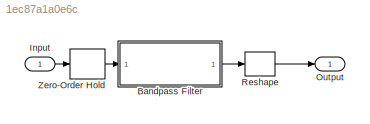
MODEL slx_1ec87a1a0e6c
KIND model
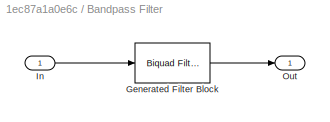
BLOCK [SubSystem] Bandpass Filter
  CopyFcn = fdesignblkfcn(gcbh, {'CopyFcn'});
  DialogController = fdesignblkfcn
  InitFcn = fdesignblkfcn(gcbh, {'InitFcn'});
  Ports = [1, 1]
  RequestExecContextInheritance = off
  UserDataPersistent = on
BLOCK [Reference] Bandpass Filter/Generated Filter Block  REF=dsparch4/Biquad Filter
  BiQuadCoeffs = [0.01013958648634297 0 -0.01013958648634297 1 -1.6618133812024951 0.98627046054740486;0.0025493781187891492 0 -0.0025493781187891492 1 -1.6514591991218408 0.98607730419032968;0.016304485317952876 0 -0.016304485317952876 1 -1.6744504392878072 0.99677925049276372;0.010019474414157988 0 -0.010019474414157988 1 -1.6562936076737262 0.99669840495107032;0.011567698875754661 0 -0.011567698875754661 1 -1.6...<+297ch>
  CoeffSource = Specify via dialog
  FilterSource = Specify via dialog
  IC = 0
  ICden = 0
  ICnum = 0
  IIRFiltStruct = Direct form II
  InputProcessing = Columns as channels (frame based)
  LockScale = off
  Ports = [1, 1]
  ScaleValueMode = Specify via input port (g)
  ScaleValues = [0.0075209697231768506;1;1;1;1;1;1;1;1]
  SourceBlock = dsparch4/Biquad Filter
  SourceType = Biquad Filter
  Tag = BlockMethodSubSystem
  UserDataPersistent = on
  a0Flag = Warning
  accumFracLength = 30
  accumMode = Same as product output
  accumWordLength = 32
  allowOverrides = on
  denAccumFracLength = 30
  denProdOutputFracLength = 30
  dfiltObjectName = dfilt.df2tsos([1 0.3 0.4],[1 0.1 0.2])
  firstCoeffFracLength = 15
  firstCoeffMode = Same word length as input
  firstCoeffWordLength = 16
  memoryFracLength = 15
  memoryMode = Same as accumulator
  memoryWordLength = 16
  multiplicandFracLength = 30
  multiplicandMode = Same as output
  multiplicandWordLength = 32
  optimizeScaleValues = off
  outputFracLength = 15
  outputMode = Same as accumulator
  outputWordLength = 16
  overflowMode = off
  prodOutputFracLength = 30
  prodOutputMode = Same as input
  prodOutputWordLength = 32
  roundingMode = Floor
  scaleValueFracLength = 14
  secondCoeffFracLength = 15
  secondCoeffMode = Same as numerator
  secondCoeffWordLength = 16
  secondMemoryFracLength = 15
  stageInputFracLength = 15
  stageInputMode = Same as input
  stageInputWordLength = 16
  stageOutputFracLength = 15
  stageOutputMode = Same as section input
  stageOutputWordLength = 16
BLOCK [Inport] Bandpass Filter/In
  IconDisplay = Port number
BLOCK [Outport] Bandpass Filter/Out
  IconDisplay = Port number
BLOCK [Inport] Input
  IconDisplay = Port number
BLOCK [Outport] Output
  IconDisplay = Port number
BLOCK [Reshape] Reshape
  Ports = [1, 1]
BLOCK [ZeroOrderHold] Zero-Order Hold
  SampleTime = -1
LINE Bandpass Filter:1 -> Reshape:1
LINE Input:1 -> Zero-Order Hold:1
LINE Reshape:1 -> Output:1
LINE Zero-Order Hold:1 -> Bandpass Filter:1
